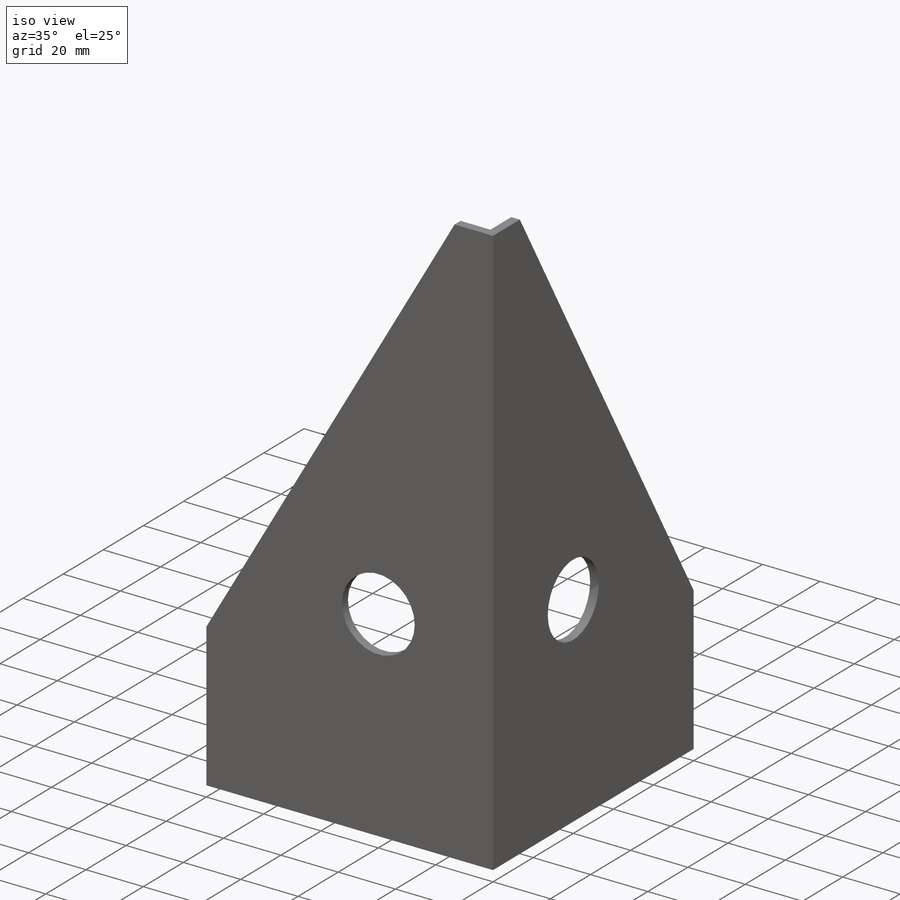
[diagram: iso view]
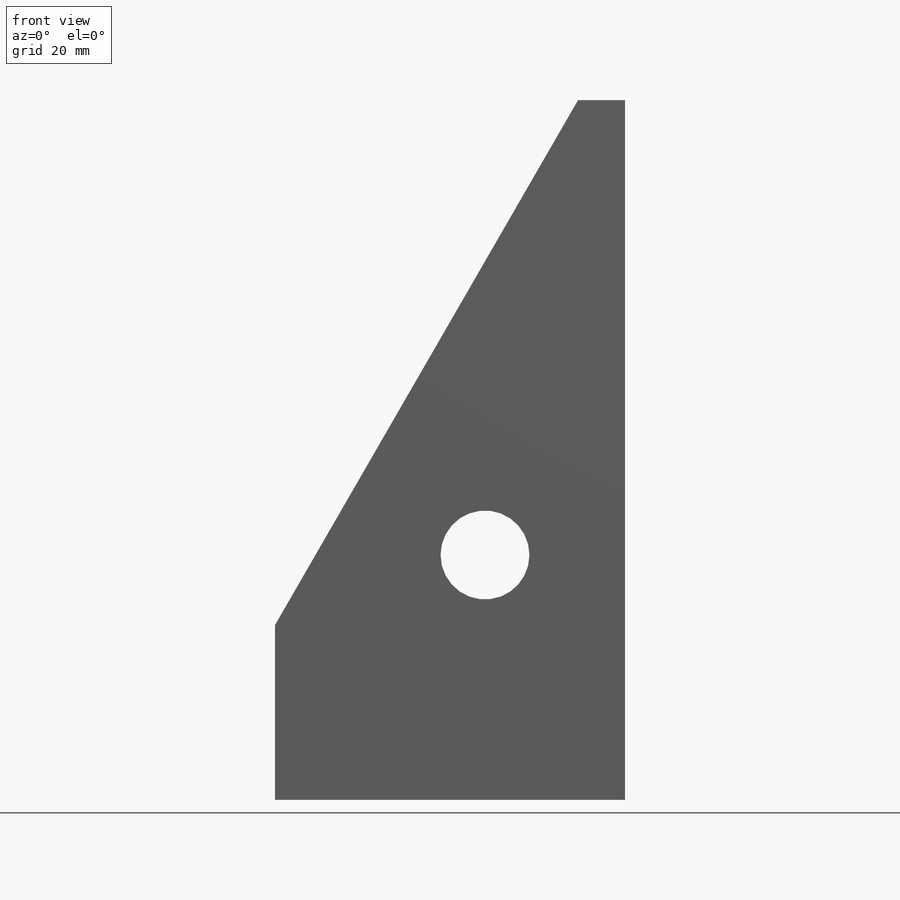
[diagram: front view]
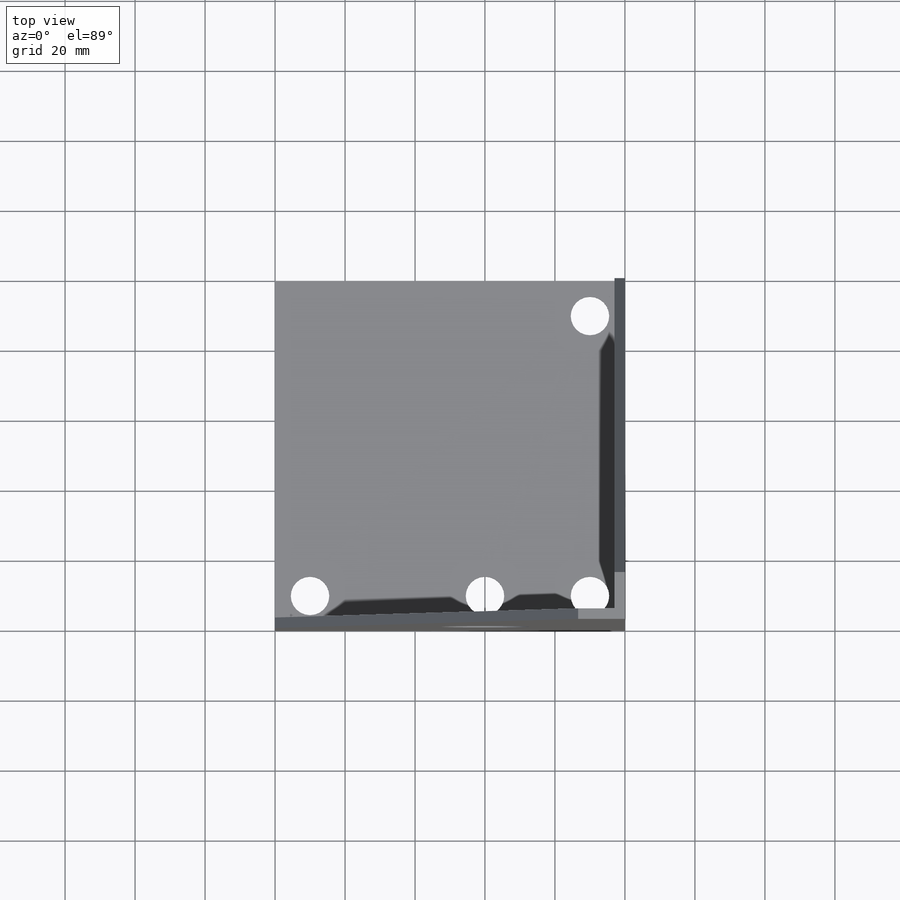
[diagram: top view]
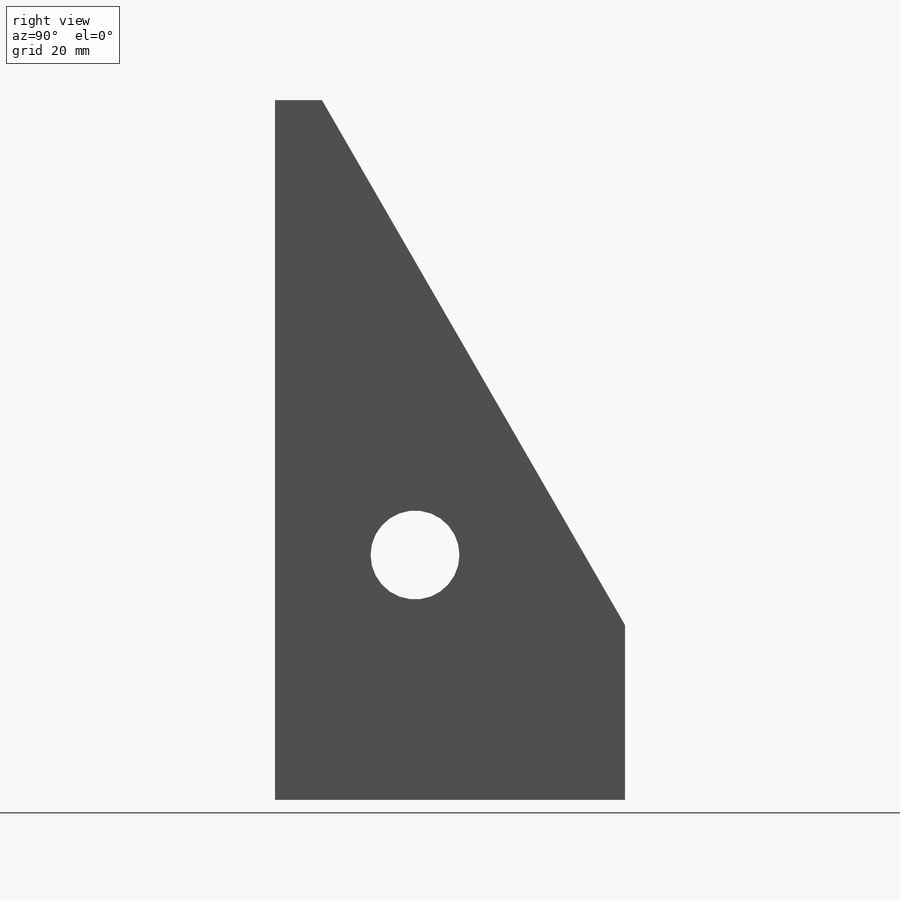
[diagram: right view]
SOLIDWORKS PART (.sldprt)
format: sldprt  version: not decoded by parser v0  size: 235,008 bytes
history: native  units: mm
features: sketch x5, plane x3, hole x2, material x1, extrude x1, shell x1, chamfer x1 (+10 scaffold rows collapsed)
feature tree (24):
  scaffold x10  (default folders/planes/origin — collapsed)
  material  "Rostfreier Chromstahl"
  plane  "Ebene vorne"
  plane  "Ebene oben"
  plane  "Ebene rechts"
  sketch  "Skizze1"  dims[D1=100.0mm]
  extrude  "Aufsatz-Linear austragen1"  Depth=200mm
  shell  "Wandung1"  Thickness=3mm
  chamfer  "Fase1"  Distance=150mm Angle=30deg
  hole  "Bohrung1"  Diameter=25.4mm Depth=3mm
  sketch  "3D-Skizze1"  dims[D1=40.0mm D2=40.0mm D3=70.0mm D4=70.0mm]
  sketch  "Skizze2"  dims[Durchmesser=25.4mm Tiefe=3.0mm]
  hole  "Durchgangsloch für M101"  Diameter=11mm Depth=3mm
  sketch  "Skizze4"  dims[D1=10.0mm D2=10.0mm D3=10.0mm D4=10.0mm D5=40.0mm]
  sketch  "Skizze3"  dims[hole-wizard template sketch: 59 standard entries collapsed; hole parameters kept: c18.Bohrerdurchmesser=11.0mm c18.Bohrungstiefe=3.0mm]
decode coverage: 10 of 10 modeling features carry decoded parameters
note: ~ marks probable driven/reference dimensions
note: suppression state not decoded; provenance and decode notes live in map.json
